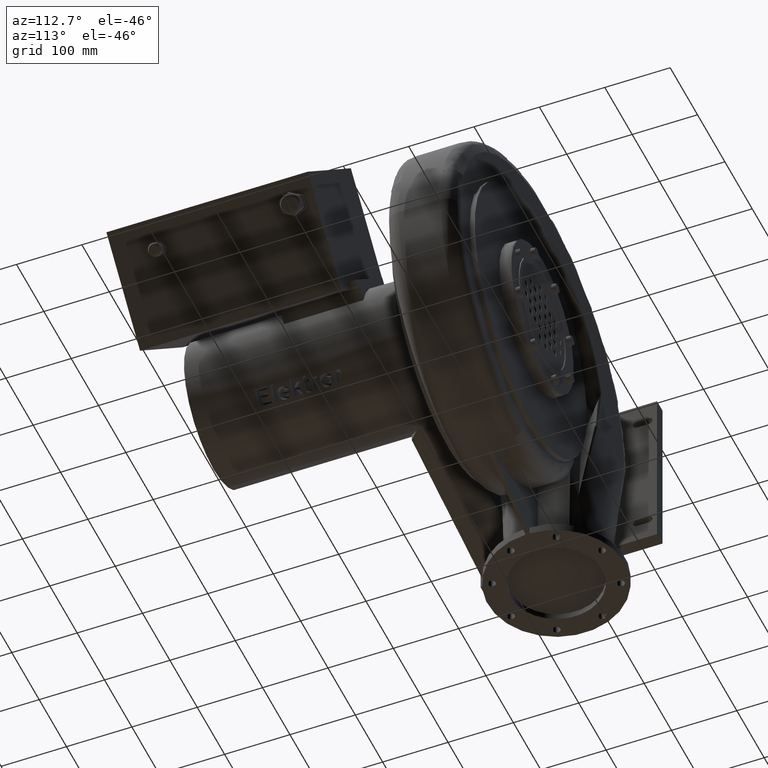
[diagram: clean part render]
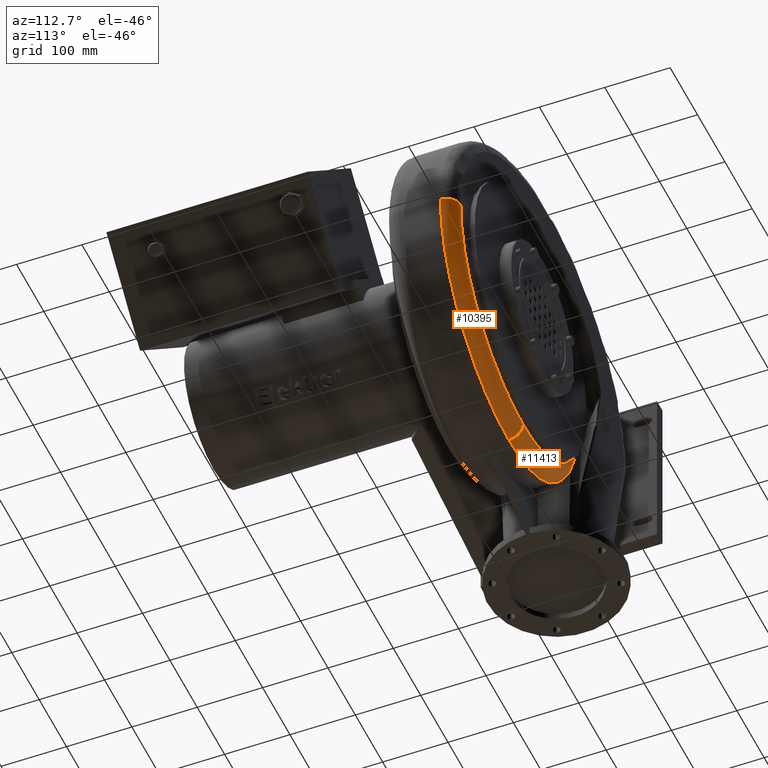
[diagram: same view with one multi-face feature highlighted, each face labeled with its STEP entity id]
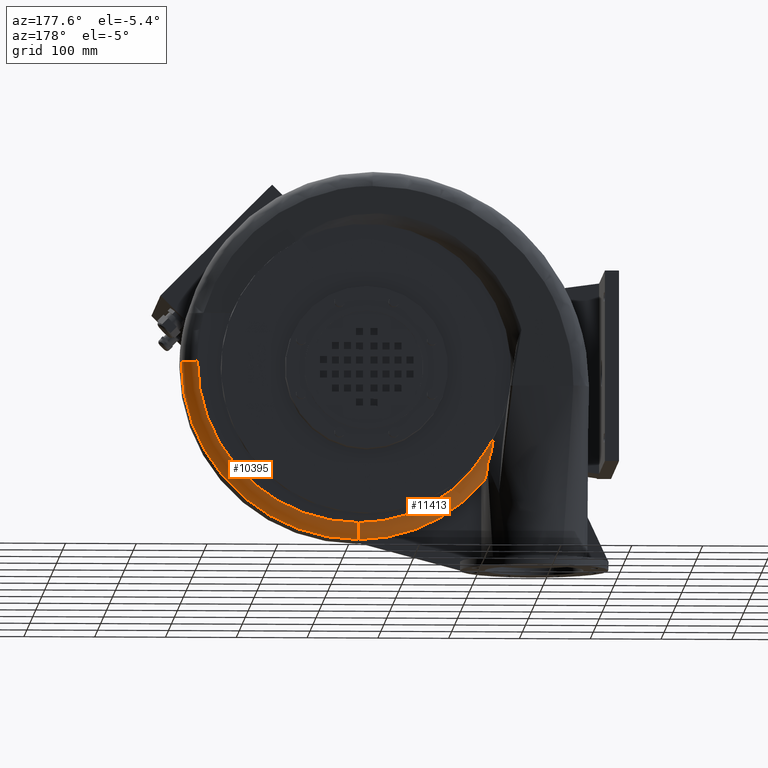
[diagram: same view with one multi-face feature highlighted, each face labeled with its STEP entity id]
A machine part, auxiliary view. The highlighted faces form ONE feature: a constant-radius fillet chain: 2 tangent blend faces with common blend radius 22 mm. The faces share edges in the B-rep.
A second angle (auxiliary view) of the same feature is appended — it is thin or edge-on in the first view.
Their STEP definitions:
[1] entity #10395 (Torus):
#9089=CARTESIAN_POINT('',(592.99999999999864,209.50000000000043,-124.99999999999969));
#9090=VERTEX_POINT('',#9089);
#9098=CARTESIAN_POINT('',(364.99999999999864,209.5000000000002,-352.99999999999966));
#9099=VERTEX_POINT('',#9098);
#9100=CARTESIAN_POINT('',(364.99999999999858,209.50000000000023,-124.99999999999972));
#9101=DIRECTION('',(3.462926E-016,-1.0,-3.462926E-016));
#9102=DIRECTION('',(0.707106781186548,4.897316E-016,-0.707106781186547));
#9103=AXIS2_PLACEMENT_3D('',#9100,#9101,#9102);
#9104=CIRCLE('',#9103,228.00000000000003);
#9105=EDGE_CURVE('',#9099,#9090,#9104,.T.);
#9124=CARTESIAN_POINT('',(614.99999999999864,187.50000000000043,-124.9999999999997));
#9125=VERTEX_POINT('',#9124);
#9133=CARTESIAN_POINT('',(592.99999999999864,187.50000000000043,-124.99999999999969));
#9134=DIRECTION('',(0.0,0.0,-1.0));
#9135=DIRECTION('',(0.0,1.0,0.0));
#9136=AXIS2_PLACEMENT_3D('',#9133,#9134,#9135);
#9137=CIRCLE('',#9136,22.0);
#9138=EDGE_CURVE('',#9090,#9125,#9137,.T.);
#10370=CARTESIAN_POINT('',(364.99999999999864,187.50000000000023,-124.99999999999972));
#10371=DIRECTION('',(8.150498E-016,-1.0,1.224647E-016));
#10372=DIRECTION('',(0.0,0.0,-1.0));
#10373=AXIS2_PLACEMENT_3D('',#10370,#10371,#10372);
#10374=TOROIDAL_SURFACE('',#10373,228.00000000000006,22.0);
#10375=ORIENTED_EDGE('',*,*,#9138,.T.);
#10376=CARTESIAN_POINT('',(364.99999999999864,187.50000000000023,-374.99999999999972));
#10377=VERTEX_POINT('',#10376);
#10378=CARTESIAN_POINT('',(364.99999999999864,187.50000000000023,-124.99999999999972));
#10379=DIRECTION('',(-3.462926E-016,1.0,3.462926E-016));
#10380=DIRECTION('',(0.707106781186548,4.897316E-016,-0.707106781186547));
#10381=AXIS2_PLACEMENT_3D('',#10378,#10379,#10380);
#10382=CIRCLE('',#10381,250.0);
#10383=EDGE_CURVE('',#9125,#10377,#10382,.T.);
#10384=ORIENTED_EDGE('',*,*,#10383,.T.);
#10385=CARTESIAN_POINT('',(364.99999999999864,187.50000000000023,-352.99999999999966));
#10386=DIRECTION('',(-1.0,0.0,0.0));
#10387=DIRECTION('',(0.0,1.0,0.0));
#10388=AXIS2_PLACEMENT_3D('',#10385,#10386,#10387);
#10389=CIRCLE('',#10388,22.0);
#10390=EDGE_CURVE('',#9099,#10377,#10389,.T.);
#10391=ORIENTED_EDGE('',*,*,#10390,.F.);
#10392=ORIENTED_EDGE('',*,*,#9105,.T.);
#10393=EDGE_LOOP('',(#10375,#10384,#10391,#10392));
#10394=FACE_OUTER_BOUND('',#10393,.T.);
#10395=ADVANCED_FACE('',(#10394),#10374,.T.);
[2] entity #11413 (Torus):
#8741=CARTESIAN_POINT('',(186.41434340309476,209.50000000000006,-251.63565659690335));
#8742=VERTEX_POINT('',#8741);
#8750=CARTESIAN_POINT('',(174.69597651184873,209.45044043956159,-232.54721479364554));
#8751=VERTEX_POINT('',#8750);
#8752=CARTESIAN_POINT('',(174.69597651187655,209.4504404395658,-232.54721479363045));
#8753=CARTESIAN_POINT('',(178.25706157839335,209.48299770554172,-239.12944235220107));
#8754=CARTESIAN_POINT('',(182.17010315968838,209.50000000000003,-245.50101433512467));
#8755=CARTESIAN_POINT('',(186.41434340309479,209.50000000000003,-251.63565659690335));
#8756=B_SPLINE_CURVE_WITH_KNOTS('',3,(#8752,#8753,#8754,#8755),.UNSPECIFIED.,.F.,.U.,(4,4),(-23.11134706942585,-20.86452781438998),.UNSPECIFIED.);
#8757=EDGE_CURVE('',#8751,#8742,#8756,.T.);
#9098=CARTESIAN_POINT('',(364.99999999999864,209.5000000000002,-352.99999999999966));
#9099=VERTEX_POINT('',#9098);
#9107=CARTESIAN_POINT('',(364.99999999999858,209.50000000000023,-144.99999999999972));
#9108=DIRECTION('',(4.420492E-016,-1.0,4.718831E-016));
#9109=DIRECTION('',(-0.68366022580506,-6.465919E-016,-0.729800449199762));
#9110=AXIS2_PLACEMENT_3D('',#9107,#9108,#9109);
#9111=CIRCLE('',#9110,208.0);
#9112=EDGE_CURVE('',#8742,#9099,#9111,.T.);
#10376=CARTESIAN_POINT('',(364.99999999999864,187.50000000000023,-374.99999999999972));
#10377=VERTEX_POINT('',#10376);
#10385=CARTESIAN_POINT('',(364.99999999999864,187.50000000000023,-352.99999999999966));
#10386=DIRECTION('',(-1.0,0.0,0.0));
#10387=DIRECTION('',(0.0,1.0,0.0));
#10388=AXIS2_PLACEMENT_3D('',#10385,#10386,#10387);
#10389=CIRCLE('',#10388,22.0);
#10390=EDGE_CURVE('',#9099,#10377,#10389,.T.);
#10604=CARTESIAN_POINT('',(183.1971848248659,205.41270814443297,-270.25254823526637));
#10605=VERTEX_POINT('',#10604);
#10606=CARTESIAN_POINT('',(183.19718482486593,205.41270814443294,-270.2525482352666));
#10607=CARTESIAN_POINT('',(179.41173350830948,207.7878330360748,-258.88672710728576));
#10608=CARTESIAN_POINT('',(176.60055704277144,208.78518689283237,-247.2934816943899));
#10609=CARTESIAN_POINT('',(175.03713927433864,209.33015078868857,-236.43038187099123));
#10610=CARTESIAN_POINT('',(174.81106639711842,209.40560602335918,-234.39290480160656));
#10611=CARTESIAN_POINT('',(174.69597651182028,209.45044043956187,-232.54721479364736));
#10612=B_SPLINE_CURVE_WITH_KNOTS('',3,(#10606,#10607,#10608,#10609,#10610,#10611),.UNSPECIFIED.,.F.,.U.,(4,2,4),(0.0,3.663843266991025,4.556966398249914),.UNSPECIFIED.);
#10613=EDGE_CURVE('',#10605,#8751,#10612,.T.);
#11203=CARTESIAN_POINT('',(186.66658208575669,187.50000000000006,-290.24872479655119));
#11204=VERTEX_POINT('',#11203);
#11205=CARTESIAN_POINT('',(186.66658208575669,187.50000000000003,-290.24872479655119));
#11206=CARTESIAN_POINT('',(186.27415909212871,189.42339777491256,-289.76691585936538));
#11207=CARTESIAN_POINT('',(185.88506968198038,191.22969521360204,-288.88644933651972));
#11208=CARTESIAN_POINT('',(184.93261969283182,195.6306439485991,-285.90614938254151));
#11209=CARTESIAN_POINT('',(184.36442159763448,198.227669171401,-283.19563033408133));
#11210=CARTESIAN_POINT('',(183.55853956452452,202.50607144280366,-276.85260346231019));
#11211=CARTESIAN_POINT('',(183.31484554411151,204.12866373531182,-273.59747198401158));
#11212=CARTESIAN_POINT('',(183.1971848248659,205.41270814443291,-270.25254823526677));
#11213=B_SPLINE_CURVE_WITH_KNOTS('',3,(#11205,#11206,#11207,#11208,#11209,#11210,#11211,#11212),.UNSPECIFIED.,.F.,.U.,(4,2,2,4),(0.000275090795765,0.606665356396038,1.617123534983439,2.492338138143968),.UNSPECIFIED.);
#11214=EDGE_CURVE('',#11204,#10605,#11213,.T.);
#11256=CARTESIAN_POINT('',(364.99999999999864,187.50000000000023,-144.99999999999972));
#11257=DIRECTION('',(-4.420492E-016,1.0,-4.718831E-016));
#11258=DIRECTION('',(-0.68366022580506,-6.465919E-016,-0.729800449199762));
#11259=AXIS2_PLACEMENT_3D('',#11256,#11257,#11258);
#11260=CIRCLE('',#11259,229.99999999999997);
#11261=EDGE_CURVE('',#10377,#11204,#11260,.T.);
#11400=CARTESIAN_POINT('',(364.99999999999864,187.50000000000023,-144.99999999999972));
#11401=DIRECTION('',(8.150498E-016,-1.0,1.224647E-016));
#11402=DIRECTION('',(0.0,0.0,-1.0));
#11403=AXIS2_PLACEMENT_3D('',#11400,#11401,#11402);
#11404=TOROIDAL_SURFACE('',#11403,208.0,22.0);
#11405=ORIENTED_EDGE('',*,*,#11261,.T.);
#11406=ORIENTED_EDGE('',*,*,#11214,.T.);
#11407=ORIENTED_EDGE('',*,*,#10613,.T.);
#11408=ORIENTED_EDGE('',*,*,#8757,.T.);
#11409=ORIENTED_EDGE('',*,*,#9112,.T.);
#11410=ORIENTED_EDGE('',*,*,#10390,.T.);
#11411=EDGE_LOOP('',(#11405,#11406,#11407,#11408,#11409,#11410));
#11412=FACE_OUTER_BOUND('',#11411,.T.);
#11413=ADVANCED_FACE('',(#11412),#11404,.T.);